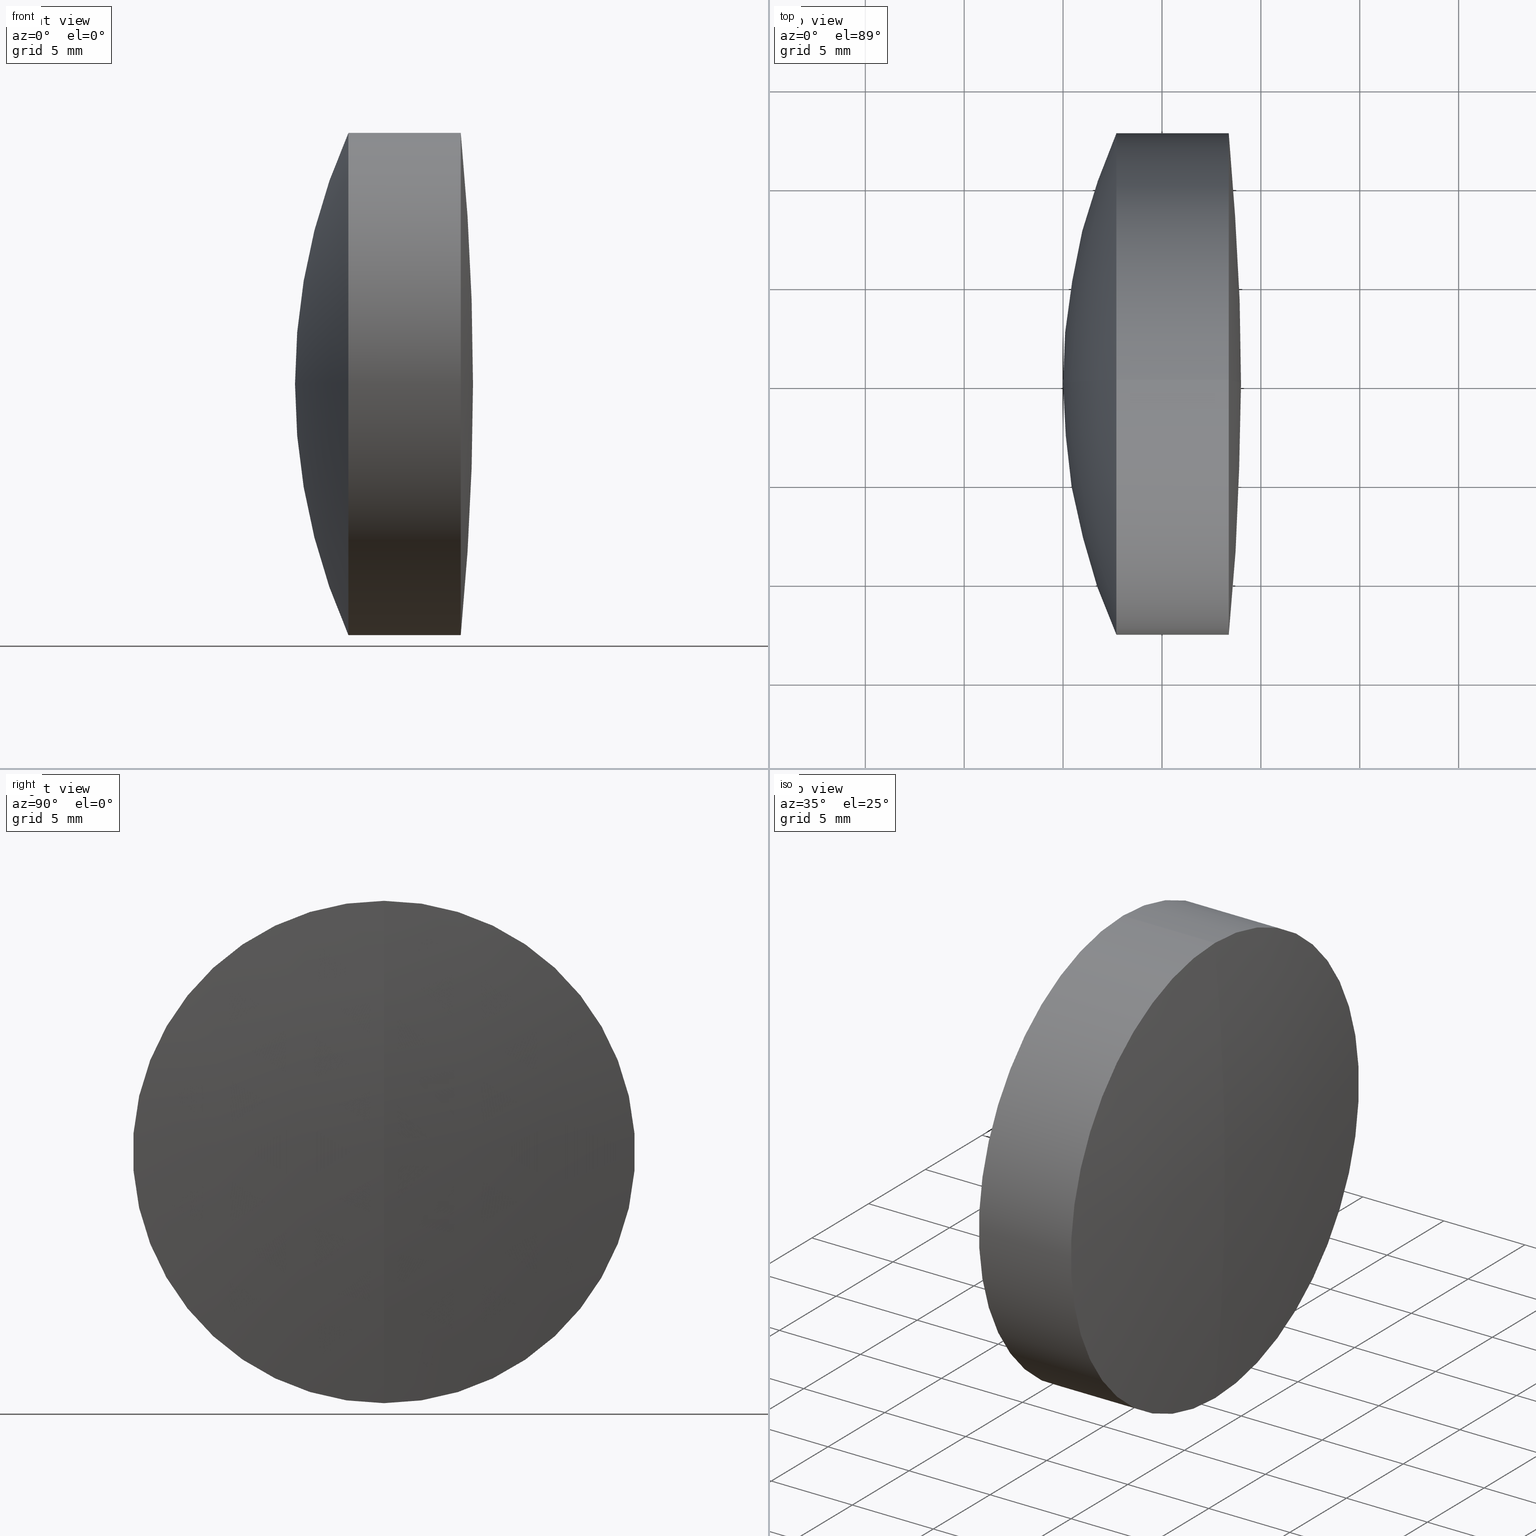
[diagram: canonical four-view strip — front | top / right | iso, engineering-drawing reading convention]
A machine part, canonical four-view strip (front | top / right | iso — engineering-drawing reading convention). The complete STEP part file that produces these views, byte-faithful:
ISO-10303-21;
HEADER;
FILE_DESCRIPTION (( 'STEP AP214' ),
    '1' );
FILE_NAME ('145053.STEP',
    '2019-05-13T07:10:48',
    ( 'user' ),
    ( '΢���й�' ),
    'SwSTEP 2.0',
    'SolidWorks 2016',
    '' );
FILE_SCHEMA (( 'AUTOMOTIVE_DESIGN' ));
ENDSEC;

DATA;
#1 = FILL_AREA_STYLE_COLOUR ( '', #212 ) ;
#2 = ORIENTED_EDGE ( 'NONE', *, *, #91, .T. ) ;
#3 = FACE_OUTER_BOUND ( 'NONE', #335, .T. ) ;
#4 =( NAMED_UNIT ( * ) PLANE_ANGLE_UNIT ( ) SI_UNIT ( $, .RADIAN. ) );
#5 = DIRECTION ( 'NONE',  ( -1.000000000000000000, -0.0000000000000000000, -0.0000000000000000000 ) ) ;
#6 = CARTESIAN_POINT ( 'NONE',  ( 233.6683955093282300, 0.0000000000000000000, 12.70000000000001700 ) ) ;
#7 = EDGE_CURVE ( 'NONE', #239, #32, #9, .T. ) ;
#8 = UNCERTAINTY_MEASURE_WITH_UNIT (LENGTH_MEASURE( 1.000000000000000100E-005 ), #234, 'distance_accuracy_value', 'NONE');
#9 = CIRCLE ( 'NONE', #97, 12.69999999999999200 ) ;
#10 = COLOUR_RGB ( '',1.000000000000000000, 1.000000000000000000, 1.000000000000000000 ) ;
#11 = ORIENTED_EDGE ( 'NONE', *, *, #227, .T. ) ;
#12 = CIRCLE ( 'NONE', #99, 12.70000000000001700 ) ;
#13 = EDGE_CURVE ( 'NONE', #32, #209, #19, .T. ) ;
#14 = MECHANICAL_DESIGN_GEOMETRIC_PRESENTATION_REPRESENTATION (  '', ( #338 ), #139 ) ;
#15 = CARTESIAN_POINT ( 'NONE',  ( 0.0000000000000000000, 0.0000000000000000000, 0.0000000000000000000 ) ) ;
#16 = ORIENTED_EDGE ( 'NONE', *, *, #7, .T. ) ;
#17 = CYLINDRICAL_SURFACE ( 'NONE', #44, 12.69999999999999200 ) ;
#18 = APPLICATION_CONTEXT ( 'automotive_design' ) ;
#19 = CIRCLE ( 'NONE', #43, 31.19999999999998500 ) ;
#20 = PRODUCT_RELATED_PRODUCT_CATEGORY ( 'part', '', ( #142 ) ) ;
#21 = DIRECTION ( 'NONE',  ( 0.0000000000000000000, -1.224646799147353000E-016, 1.000000000000000000 ) ) ;
#22 = ORIENTED_EDGE ( 'NONE', *, *, #264, .F. ) ;
#23 = ADVANCED_BREP_SHAPE_REPRESENTATION ( '145053', ( #294, #135, #250 ), #203 ) ;
#24 = DIRECTION ( 'NONE',  ( 0.0000000000000000000, 0.0000000000000000000, 1.000000000000000000 ) ) ;
#25 =( NAMED_UNIT ( * ) SI_UNIT ( $, .STERADIAN. ) SOLID_ANGLE_UNIT ( ) );
#26 = CIRCLE ( 'NONE', #162, 12.69999999999999200 ) ;
#27 = EDGE_CURVE ( 'NONE', #146, #310, #59, .T. ) ;
#28 = FILL_AREA_STYLE ('',( #1 ) ) ;
#29 = CARTESIAN_POINT ( 'NONE',  ( 238.3768828869102400, 0.0000000000000000000, 12.70000000000002100 ) ) ;
#30 =( NAMED_UNIT ( * ) SI_UNIT ( $, .STERADIAN. ) SOLID_ANGLE_UNIT ( ) );
#31 = AXIS2_PLACEMENT_3D ( 'NONE', #53, #106, #110 ) ;
#32 = VERTEX_POINT ( 'NONE', #253 ) ;
#33 = PRESENTATION_STYLE_ASSIGNMENT (( #231 ) ) ;
#34 = DIRECTION ( 'NONE',  ( 0.0000000000000000000, -1.224646799147353200E-016, 1.000000000000000000 ) ) ;
#35 = CARTESIAN_POINT ( 'NONE',  ( 261.1958458084194500, 0.0000000000000000000, -5.967343666751443000E-015 ) ) ;
#36 =( LENGTH_UNIT ( ) NAMED_UNIT ( * ) SI_UNIT ( .MILLI., .METRE. ) );
#37 = EDGE_LOOP ( 'NONE', ( #22, #220, #279 ) ) ;
#38 = ORIENTED_EDGE ( 'NONE', *, *, #27, .T. ) ;
#39 = LINE ( 'NONE', #191, #87 ) ;
#40 = PRODUCT_DEFINITION_FORMATION_WITH_SPECIFIED_SOURCE ( '�κ�', '', #142, .NOT_KNOWN. ) ;
#41 = SPHERICAL_SURFACE ( 'NONE', #127, 25.89999999999999100 ) ;
#42 = ADVANCED_FACE ( 'NONE', ( #3 ), #189, .T. ) ;
#43 = AXIS2_PLACEMENT_3D ( 'NONE', #35, #57, #155 ) ;
#44 = AXIS2_PLACEMENT_3D ( 'NONE', #45, #290, #79 ) ;
#45 = CARTESIAN_POINT ( 'NONE',  ( -9.702612178336682500, 0.0000000000000000000, 0.0000000000000000000 ) ) ;
#46 = SURFACE_SIDE_STYLE ('',( #252 ) ) ;
#47 = DIRECTION ( 'NONE',  ( -1.000000000000000000, -0.0000000000000000000, -0.0000000000000000000 ) ) ;
#48 = ADVANCED_FACE ( 'NONE', ( #265 ), #17, .T. ) ;
#49 = EDGE_CURVE ( 'NONE', #65, #310, #66, .T. ) ;
#50 = PRESENTATION_STYLE_ASSIGNMENT (( #130 ) ) ;
#51 = CIRCLE ( 'NONE', #217, 130.5999999999999900 ) ;
#52 = DIRECTION ( 'NONE',  ( 0.0000000000000000000, 0.0000000000000000000, 1.000000000000000000 ) ) ;
#53 = CARTESIAN_POINT ( 'NONE',  ( -0.5519199926577972300, 0.0000000000000000000, 0.0000000000000000000 ) ) ;
#54 = CLOSED_SHELL ( 'NONE', ( #150, #318, #207, #282, #48, #125 ) ) ;
#55 = EDGE_CURVE ( 'NONE', #159, #200, #179, .T. ) ;
#56 = DIRECTION ( 'NONE',  ( 1.000000000000000000, 0.0000000000000000000, 0.0000000000000000000 ) ) ;
#57 = DIRECTION ( 'NONE',  ( 0.0000000000000000000, -1.000000000000000000, 0.0000000000000000000 ) ) ;
#58 = STYLED_ITEM ( 'NONE', ( #197 ), #23 ) ;
#59 = CIRCLE ( 'NONE', #255, 12.70000000000002100 ) ;
#60 = DIRECTION ( 'NONE',  ( -1.000000000000000000, -0.0000000000000000000, -0.0000000000000000000 ) ) ;
#61 = EDGE_CURVE ( 'NONE', #121, #166, #128, .T. ) ;
#62 = EDGE_LOOP ( 'NONE', ( #242, #258, #224 ) ) ;
#63 =( NAMED_UNIT ( * ) SI_UNIT ( $, .STERADIAN. ) SOLID_ANGLE_UNIT ( ) );
#64 = AXIS2_PLACEMENT_3D ( 'NONE', #317, #249, #188 ) ;
#65 = VERTEX_POINT ( 'NONE', #283 ) ;
#66 = CIRCLE ( 'NONE', #201, 130.5999999999999900 ) ;
#67 = ADVANCED_FACE ( 'NONE', ( #263 ), #41, .F. ) ;
#68 = DIRECTION ( 'NONE',  ( -1.000000000000000000, -0.0000000000000000000, -0.0000000000000000000 ) ) ;
#69 = ORIENTED_EDGE ( 'NONE', *, *, #269, .T. ) ;
#70 = EDGE_LOOP ( 'NONE', ( #211, #11, #243, #260 ) ) ;
#71 = DIRECTION ( 'NONE',  ( 0.0000000000000000000, 1.000000000000000000, 0.0000000000000000000 ) ) ;
#72 = EDGE_LOOP ( 'NONE', ( #291, #305, #300 ) ) ;
#73 = VECTOR ( 'NONE', #167, 1000.000000000000000 ) ;
#74 = CARTESIAN_POINT ( 'NONE',  ( 108.3958458084194400, 0.0000000000000000000, 0.0000000000000000000 ) ) ;
#75 = ORIENTED_EDGE ( 'NONE', *, *, #55, .F. ) ;
#76 = AXIS2_PLACEMENT_3D ( 'NONE', #185, #124, #288 ) ;
#77 = DIRECTION ( 'NONE',  ( -0.0000000000000000000, 1.000000000000000000, 1.224646799147353200E-016 ) ) ;
#78 = CARTESIAN_POINT ( 'NONE',  ( 233.6683955093282300, 0.0000000000000000000, 0.0000000000000000000 ) ) ;
#79 = DIRECTION ( 'NONE',  ( 0.0000000000000000000, 0.0000000000000000000, 1.000000000000000000 ) ) ;
#80 = ORIENTED_EDGE ( 'NONE', *, *, #269, .F. ) ;
#81 = ORIENTED_EDGE ( 'NONE', *, *, #227, .F. ) ;
#82 = DIRECTION ( 'NONE',  ( 0.0000000000000000000, 0.0000000000000000000, 1.000000000000000000 ) ) ;
#83 = DIRECTION ( 'NONE',  ( 0.0000000000000000000, 1.000000000000000000, 0.0000000000000000000 ) ) ;
#84 = DIRECTION ( 'NONE',  ( 0.0000000000000000000, -1.000000000000000000, 0.0000000000000000000 ) ) ;
#85 = DIRECTION ( 'NONE',  ( 0.0000000000000000000, 0.0000000000000000000, 1.000000000000000000 ) ) ;
#86 = CARTESIAN_POINT ( 'NONE',  ( 108.3958458084194400, 0.0000000000000000000, 0.0000000000000000000 ) ) ;
#87 = VECTOR ( 'NONE', #228, 1000.000000000000000 ) ;
#88 = SURFACE_STYLE_FILL_AREA ( #118 ) ;
#89 = DIRECTION ( 'NONE',  ( 0.0000000000000000000, 0.0000000000000000000, 1.000000000000000000 ) ) ;
#90 = DIRECTION ( 'NONE',  ( -1.000000000000000000, -0.0000000000000000000, -0.0000000000000000000 ) ) ;
#91 = EDGE_CURVE ( 'NONE', #230, #166, #329, .T. ) ;
#92 = DIRECTION ( 'NONE',  ( 0.0000000000000000000, -1.224646799147353200E-016, 1.000000000000000000 ) ) ;
#93 = EDGE_LOOP ( 'NONE', ( #103, #284, #140 ) ) ;
#94 = CARTESIAN_POINT ( 'NONE',  ( 211.0958458084194300, 0.0000000000000000000, -3.185954776904472300E-015 ) ) ;
#95 = ORIENTED_EDGE ( 'NONE', *, *, #7, .F. ) ;
#96 = SURFACE_STYLE_FILL_AREA ( #28 ) ;
#97 = AXIS2_PLACEMENT_3D ( 'NONE', #347, #90, #52 ) ;
#98 = DIRECTION ( 'NONE',  ( 0.0000000000000000000, 0.0000000000000000000, 1.000000000000000000 ) ) ;
#99 = AXIS2_PLACEMENT_3D ( 'NONE', #261, #47, #102 ) ;
#100 = EDGE_LOOP ( 'NONE', ( #132, #2, #69 ) ) ;
#101 = COLOUR_RGB ( '',1.000000000000000000, 1.000000000000000000, 1.000000000000000000 ) ;
#102 = DIRECTION ( 'NONE',  ( 0.0000000000000000000, 0.0000000000000000000, 1.000000000000000000 ) ) ;
#103 = ORIENTED_EDGE ( 'NONE', *, *, #299, .F. ) ;
#104 = CYLINDRICAL_SURFACE ( 'NONE', #31, 12.70000000000001900 ) ;
#105 = AXIS2_PLACEMENT_3D ( 'NONE', #165, #164, #115 ) ;
#106 = DIRECTION ( 'NONE',  ( -1.000000000000000000, -0.0000000000000000000, -0.0000000000000000000 ) ) ;
#107 = EDGE_CURVE ( 'NONE', #146, #166, #39, .T. ) ;
#108 = CARTESIAN_POINT ( 'NONE',  ( 261.1958458084194500, 0.0000000000000000000, -5.967343666751443000E-015 ) ) ;
#109 = ORIENTED_EDGE ( 'NONE', *, *, #13, .T. ) ;
#110 = DIRECTION ( 'NONE',  ( 0.0000000000000000000, 0.0000000000000000000, 1.000000000000000000 ) ) ;
#111 = ADVANCED_FACE ( 'NONE', ( #119 ), #104, .T. ) ;
#112 = DIRECTION ( 'NONE',  ( 0.0000000000000000000, 0.0000000000000000000, 1.000000000000000000 ) ) ;
#113 = LINE ( 'NONE', #215, #73 ) ;
#114 = CARTESIAN_POINT ( 'NONE',  ( 108.3958458084194400, 0.0000000000000000000, 0.0000000000000000000 ) ) ;
#115 = DIRECTION ( 'NONE',  ( 0.0000000000000000000, 0.0000000000000000000, 1.000000000000000000 ) ) ;
#116 = DIRECTION ( 'NONE',  ( 0.0000000000000000000, 0.0000000000000000000, 1.000000000000000000 ) ) ;
#117 = SURFACE_SIDE_STYLE ('',( #96 ) ) ;
#118 = FILL_AREA_STYLE ('',( #208 ) ) ;
#119 = FACE_OUTER_BOUND ( 'NONE', #346, .T. ) ;
#120 = CARTESIAN_POINT ( 'NONE',  ( -9.702612178336682500, 0.0000000000000000000, 12.69999999999999200 ) ) ;
#121 = VERTEX_POINT ( 'NONE', #6 ) ;
#122 = CIRCLE ( 'NONE', #285, 25.89999999999999900 ) ;
#123 = AXIS2_PLACEMENT_3D ( 'NONE', #293, #84, #287 ) ;
#124 = DIRECTION ( 'NONE',  ( -1.000000000000000000, -0.0000000000000000000, -0.0000000000000000000 ) ) ;
#125 = ADVANCED_FACE ( 'NONE', ( #328 ), #303, .T. ) ;
#126 = UNCERTAINTY_MEASURE_WITH_UNIT (LENGTH_MEASURE( 1.000000000000000100E-005 ), #337, 'distance_accuracy_value', 'NONE');
#127 = AXIS2_PLACEMENT_3D ( 'NONE', #144, #143, #213 ) ;
#128 = CIRCLE ( 'NONE', #145, 12.70000000000001700 ) ;
#129 = CIRCLE ( 'NONE', #192, 12.69999999999999200 ) ;
#130 = SURFACE_STYLE_USAGE ( .BOTH. , #311 ) ;
#131 = EDGE_CURVE ( 'NONE', #310, #121, #113, .T. ) ;
#132 = ORIENTED_EDGE ( 'NONE', *, *, #152, .F. ) ;
#133 = AXIS2_PLACEMENT_3D ( 'NONE', #274, #256, #304 ) ;
#134 = SPHERICAL_SURFACE ( 'NONE', #105, 25.89999999999999900 ) ;
#135 = MANIFOLD_SOLID_BREP ( '��ת3', #325 ) ;
#136 = CARTESIAN_POINT ( 'NONE',  ( 211.0958458084194300, 0.0000000000000000000, -3.185954776904472300E-015 ) ) ;
#137 = FACE_OUTER_BOUND ( 'NONE', #62, .T. ) ;
#138 = DIRECTION ( 'NONE',  ( 0.0000000000000000000, 0.0000000000000000000, 1.000000000000000000 ) ) ;
#139 =( GEOMETRIC_REPRESENTATION_CONTEXT ( 3 ) GLOBAL_UNCERTAINTY_ASSIGNED_CONTEXT ( ( #8 ) ) GLOBAL_UNIT_ASSIGNED_CONTEXT ( ( #234, #320, #30 ) ) REPRESENTATION_CONTEXT ( 'NONE', 'WORKASPACE' ) );
#140 = ORIENTED_EDGE ( 'NONE', *, *, #27, .F. ) ;
#141 = ORIENTED_EDGE ( 'NONE', *, *, #107, .T. ) ;
#142 = PRODUCT ( '145053', '145053', '', ( #339 ) ) ;
#143 = DIRECTION ( 'NONE',  ( 0.0000000000000000000, 1.000000000000000000, 0.0000000000000000000 ) ) ;
#144 = CARTESIAN_POINT ( 'NONE',  ( 211.0958458084194300, 0.0000000000000000000, -3.185954776904472300E-015 ) ) ;
#145 = AXIS2_PLACEMENT_3D ( 'NONE', #78, #186, #170 ) ;
#146 = VERTEX_POINT ( 'NONE', #181 ) ;
#147 = SHAPE_DEFINITION_REPRESENTATION ( #330, #23 ) ;
#148 = AXIS2_PLACEMENT_3D ( 'NONE', #161, #251, #24 ) ;
#149 = APPLICATION_PROTOCOL_DEFINITION ( 'draft international standard', 'automotive_design', 1998, #151 ) ;
#150 = ADVANCED_FACE ( 'NONE', ( #225 ), #134, .T. ) ;
#151 = APPLICATION_CONTEXT ( 'automotive_design' ) ;
#152 = EDGE_CURVE ( 'NONE', #230, #121, #307, .T. ) ;
#153 = STYLED_ITEM ( 'NONE', ( #50 ), #294 ) ;
#154 = ORIENTED_EDGE ( 'NONE', *, *, #264, .T. ) ;
#155 = DIRECTION ( 'NONE',  ( 0.0000000000000000000, 0.0000000000000000000, -1.000000000000000000 ) ) ;
#156 = SPHERICAL_SURFACE ( 'NONE', #171, 130.5999999999999900 ) ;
#157 = DIRECTION ( 'NONE',  ( 0.0000000000000000000, -1.224646799147353200E-016, 1.000000000000000000 ) ) ;
#158 = DIRECTION ( 'NONE',  ( -0.0000000000000000000, 1.000000000000000000, 1.224646799147353200E-016 ) ) ;
#159 = VERTEX_POINT ( 'NONE', #341 ) ;
#160 = ORIENTED_EDGE ( 'NONE', *, *, #131, .T. ) ;
#161 = CARTESIAN_POINT ( 'NONE',  ( 108.3958458084194400, 0.0000000000000000000, 0.0000000000000000000 ) ) ;
#162 = AXIS2_PLACEMENT_3D ( 'NONE', #173, #68, #138 ) ;
#163 =( LENGTH_UNIT ( ) NAMED_UNIT ( * ) SI_UNIT ( .MILLI., .METRE. ) );
#164 = DIRECTION ( 'NONE',  ( 0.0000000000000000000, 1.000000000000000000, 0.0000000000000000000 ) ) ;
#165 = CARTESIAN_POINT ( 'NONE',  ( 211.0958458084194300, 0.0000000000000000000, -3.185954776904472300E-015 ) ) ;
#166 = VERTEX_POINT ( 'NONE', #278 ) ;
#167 = DIRECTION ( 'NONE',  ( -1.000000000000000000, -0.0000000000000000000, -0.0000000000000000000 ) ) ;
#168 = DIRECTION ( 'NONE',  ( -1.000000000000000000, -0.0000000000000000000, -0.0000000000000000000 ) ) ;
#169 = CARTESIAN_POINT ( 'NONE',  ( 238.3768828869102400, 0.0000000000000000000, 0.0000000000000000000 ) ) ;
#170 = DIRECTION ( 'NONE',  ( 0.0000000000000000000, 0.0000000000000000000, 1.000000000000000000 ) ) ;
#171 = AXIS2_PLACEMENT_3D ( 'NONE', #86, #277, #116 ) ;
#172 = EDGE_CURVE ( 'NONE', #319, #200, #177, .T. ) ;
#173 = CARTESIAN_POINT ( 'NONE',  ( 233.6683955093282300, 0.0000000000000000000, 0.0000000000000000000 ) ) ;
#174 = EDGE_LOOP ( 'NONE', ( #81, #280, #268, #95 ) ) ;
#175 = ADVANCED_FACE ( 'NONE', ( #254 ), #323, .T. ) ;
#176 = EDGE_LOOP ( 'NONE', ( #333, #272, #273 ) ) ;
#177 = CIRCLE ( 'NONE', #187, 12.69999999999999200 ) ;
#178 = AXIS2_PLACEMENT_3D ( 'NONE', #312, #281, #34 ) ;
#179 = CIRCLE ( 'NONE', #182, 25.89999999999999900 ) ;
#180 = EDGE_LOOP ( 'NONE', ( #75, #154, #276 ) ) ;
#181 = CARTESIAN_POINT ( 'NONE',  ( 238.3768828869102400, 1.555301434917141200E-015, -12.70000000000002200 ) ) ;
#182 = AXIS2_PLACEMENT_3D ( 'NONE', #94, #77, #92 ) ;
#183 = CARTESIAN_POINT ( 'NONE',  ( 229.9958458084194600, 0.0000000000000000000, -4.056894660081572400E-015 ) ) ;
#184 = AXIS2_PLACEMENT_3D ( 'NONE', #108, #257, #82 ) ;
#185 = CARTESIAN_POINT ( 'NONE',  ( -9.702612178336682500, 0.0000000000000000000, 0.0000000000000000000 ) ) ;
#186 = DIRECTION ( 'NONE',  ( -1.000000000000000000, -0.0000000000000000000, -0.0000000000000000000 ) ) ;
#187 = AXIS2_PLACEMENT_3D ( 'NONE', #314, #5, #344 ) ;
#188 = DIRECTION ( 'NONE',  ( 0.0000000000000000000, 0.0000000000000000000, 1.000000000000000000 ) ) ;
#189 = CYLINDRICAL_SURFACE ( 'NONE', #64, 12.70000000000001900 ) ;
#190 = CIRCLE ( 'NONE', #133, 12.70000000000002100 ) ;
#191 = CARTESIAN_POINT ( 'NONE',  ( -0.5519199926577972300, 1.555301434917140800E-015, -12.70000000000001900 ) ) ;
#192 = AXIS2_PLACEMENT_3D ( 'NONE', #324, #297, #112 ) ;
#193 = DIRECTION ( 'NONE',  ( 0.0000000000000000000, 1.000000000000000000, 0.0000000000000000000 ) ) ;
#194 = ORIENTED_EDGE ( 'NONE', *, *, #107, .F. ) ;
#195 = SPHERICAL_SURFACE ( 'NONE', #270, 31.19999999999998500 ) ;
#196 = EDGE_CURVE ( 'NONE', #239, #209, #205, .T. ) ;
#197 = PRESENTATION_STYLE_ASSIGNMENT (( #245 ) ) ;
#198 = AXIS2_PLACEMENT_3D ( 'NONE', #136, #193, #85 ) ;
#199 =( GEOMETRIC_REPRESENTATION_CONTEXT ( 3 ) GLOBAL_UNCERTAINTY_ASSIGNED_CONTEXT ( ( #126 ) ) GLOBAL_UNIT_ASSIGNED_CONTEXT ( ( #337, #229, #246 ) ) REPRESENTATION_CONTEXT ( 'NONE', 'WORKASPACE' ) );
#200 = VERTEX_POINT ( 'NONE', #237 ) ;
#201 = AXIS2_PLACEMENT_3D ( 'NONE', #74, #202, #266 ) ;
#202 = DIRECTION ( 'NONE',  ( 0.0000000000000000000, -1.000000000000000000, 0.0000000000000000000 ) ) ;
#203 =( GEOMETRIC_REPRESENTATION_CONTEXT ( 3 ) GLOBAL_UNCERTAINTY_ASSIGNED_CONTEXT ( ( #340 ) ) GLOBAL_UNIT_ASSIGNED_CONTEXT ( ( #163, #309, #25 ) ) REPRESENTATION_CONTEXT ( 'NONE', 'WORKASPACE' ) );
#204 = ORIENTED_EDGE ( 'NONE', *, *, #131, .F. ) ;
#205 = CIRCLE ( 'NONE', #178, 31.19999999999998500 ) ;
#206 = DIRECTION ( 'NONE',  ( 0.0000000000000000000, 0.0000000000000000000, 1.000000000000000000 ) ) ;
#207 = ADVANCED_FACE ( 'NONE', ( #137 ), #195, .T. ) ;
#208 = FILL_AREA_STYLE_COLOUR ( '', #101 ) ;
#209 = VERTEX_POINT ( 'NONE', #183 ) ;
#210 = CARTESIAN_POINT ( 'NONE',  ( 211.0958458084194300, 0.0000000000000000000, -3.185954776904472300E-015 ) ) ;
#211 = ORIENTED_EDGE ( 'NONE', *, *, #172, .T. ) ;
#212 = COLOUR_RGB ( '',1.000000000000000000, 1.000000000000000000, 1.000000000000000000 ) ;
#213 = DIRECTION ( 'NONE',  ( 0.0000000000000000000, 0.0000000000000000000, 1.000000000000000000 ) ) ;
#214 =( GEOMETRIC_REPRESENTATION_CONTEXT ( 3 ) GLOBAL_UNCERTAINTY_ASSIGNED_CONTEXT ( ( #238 ) ) GLOBAL_UNIT_ASSIGNED_CONTEXT ( ( #36, #4, #63 ) ) REPRESENTATION_CONTEXT ( 'NONE', 'WORKASPACE' ) );
#215 = CARTESIAN_POINT ( 'NONE',  ( -0.5519199926577972300, 0.0000000000000000000, 12.70000000000001900 ) ) ;
#216 = CARTESIAN_POINT ( 'NONE',  ( 261.1958458084194500, 0.0000000000000000000, -5.967343666751443000E-015 ) ) ;
#217 = AXIS2_PLACEMENT_3D ( 'NONE', #114, #271, #21 ) ;
#218 = ORIENTED_EDGE ( 'NONE', *, *, #196, .F. ) ;
#219 = SPHERICAL_SURFACE ( 'NONE', #184, 31.19999999999998500 ) ;
#220 = ORIENTED_EDGE ( 'NONE', *, *, #55, .T. ) ;
#221 = EDGE_CURVE ( 'NONE', #32, #239, #129, .T. ) ;
#222 = EDGE_LOOP ( 'NONE', ( #218, #16, #109 ) ) ;
#223 = LINE ( 'NONE', #120, #259 ) ;
#224 = ORIENTED_EDGE ( 'NONE', *, *, #13, .F. ) ;
#225 = FACE_OUTER_BOUND ( 'NONE', #37, .T. ) ;
#226 = SPHERICAL_SURFACE ( 'NONE', #267, 25.89999999999999100 ) ;
#227 = EDGE_CURVE ( 'NONE', #200, #239, #326, .T. ) ;
#228 = DIRECTION ( 'NONE',  ( -1.000000000000000000, -0.0000000000000000000, -0.0000000000000000000 ) ) ;
#229 =( NAMED_UNIT ( * ) PLANE_ANGLE_UNIT ( ) SI_UNIT ( $, .RADIAN. ) );
#230 = VERTEX_POINT ( 'NONE', #248 ) ;
#231 = SURFACE_STYLE_USAGE ( .BOTH. , #117 ) ;
#232 = MECHANICAL_DESIGN_GEOMETRIC_PRESENTATION_REPRESENTATION (  '', ( #153 ), #214 ) ;
#233 = DIRECTION ( 'NONE',  ( 0.0000000000000000000, 0.0000000000000000000, -1.000000000000000000 ) ) ;
#234 =( LENGTH_UNIT ( ) NAMED_UNIT ( * ) SI_UNIT ( .MILLI., .METRE. ) );
#235 = ORIENTED_EDGE ( 'NONE', *, *, #61, .F. ) ;
#236 = FACE_OUTER_BOUND ( 'NONE', #93, .T. ) ;
#237 = CARTESIAN_POINT ( 'NONE',  ( 233.6683955093282300, 1.555301434917137800E-015, -12.69999999999999200 ) ) ;
#238 = UNCERTAINTY_MEASURE_WITH_UNIT (LENGTH_MEASURE( 1.000000000000000100E-005 ), #36, 'distance_accuracy_value', 'NONE');
#239 = VERTEX_POINT ( 'NONE', #322 ) ;
#240 = FILL_AREA_STYLE_COLOUR ( '', #10 ) ;
#241 = DIRECTION ( 'NONE',  ( 0.0000000000000000000, 0.0000000000000000000, 1.000000000000000000 ) ) ;
#242 = ORIENTED_EDGE ( 'NONE', *, *, #221, .T. ) ;
#243 = ORIENTED_EDGE ( 'NONE', *, *, #221, .F. ) ;
#244 = VECTOR ( 'NONE', #60, 1000.000000000000000 ) ;
#245 = SURFACE_STYLE_USAGE ( .BOTH. , #46 ) ;
#246 =( NAMED_UNIT ( * ) SI_UNIT ( $, .STERADIAN. ) SOLID_ANGLE_UNIT ( ) );
#247 = CARTESIAN_POINT ( 'NONE',  ( 211.0958458084194300, 0.0000000000000000000, -3.185954776904472300E-015 ) ) ;
#248 = CARTESIAN_POINT ( 'NONE',  ( 236.9958458084194300, 0.0000000000000000000, -1.600037172008650700E-015 ) ) ;
#249 = DIRECTION ( 'NONE',  ( -1.000000000000000000, -0.0000000000000000000, -0.0000000000000000000 ) ) ;
#250 = AXIS2_PLACEMENT_3D ( 'NONE', #15, #98, #56 ) ;
#251 = DIRECTION ( 'NONE',  ( 0.0000000000000000000, 1.000000000000000000, 0.0000000000000000000 ) ) ;
#252 = SURFACE_STYLE_FILL_AREA ( #313 ) ;
#253 = CARTESIAN_POINT ( 'NONE',  ( 232.6976002483854100, 0.0000000000000000000, 12.69999999999999600 ) ) ;
#254 = FACE_OUTER_BOUND ( 'NONE', #176, .T. ) ;
#255 = AXIS2_PLACEMENT_3D ( 'NONE', #169, #343, #206 ) ;
#256 = DIRECTION ( 'NONE',  ( -1.000000000000000000, -0.0000000000000000000, -0.0000000000000000000 ) ) ;
#257 = DIRECTION ( 'NONE',  ( 0.0000000000000000000, 1.000000000000000000, 0.0000000000000000000 ) ) ;
#258 = ORIENTED_EDGE ( 'NONE', *, *, #196, .T. ) ;
#259 = VECTOR ( 'NONE', #168, 1000.000000000000000 ) ;
#260 = ORIENTED_EDGE ( 'NONE', *, *, #334, .F. ) ;
#261 = CARTESIAN_POINT ( 'NONE',  ( 233.6683955093282300, 0.0000000000000000000, 0.0000000000000000000 ) ) ;
#262 = AXIS2_PLACEMENT_3D ( 'NONE', #289, #158, #157 ) ;
#263 = FACE_OUTER_BOUND ( 'NONE', #72, .T. ) ;
#264 = EDGE_CURVE ( 'NONE', #159, #319, #122, .T. ) ;
#265 = FACE_OUTER_BOUND ( 'NONE', #174, .T. ) ;
#266 = DIRECTION ( 'NONE',  ( 0.0000000000000000000, 0.0000000000000000000, -1.000000000000000000 ) ) ;
#267 = AXIS2_PLACEMENT_3D ( 'NONE', #247, #83, #241 ) ;
#268 = ORIENTED_EDGE ( 'NONE', *, *, #334, .T. ) ;
#269 = EDGE_CURVE ( 'NONE', #166, #121, #12, .T. ) ;
#270 = AXIS2_PLACEMENT_3D ( 'NONE', #216, #71, #89 ) ;
#271 = DIRECTION ( 'NONE',  ( -0.0000000000000000000, 1.000000000000000000, 1.224646799147353200E-016 ) ) ;
#272 = ORIENTED_EDGE ( 'NONE', *, *, #299, .T. ) ;
#273 = ORIENTED_EDGE ( 'NONE', *, *, #332, .F. ) ;
#274 = CARTESIAN_POINT ( 'NONE',  ( 238.3768828869102400, 0.0000000000000000000, 0.0000000000000000000 ) ) ;
#275 = FACE_OUTER_BOUND ( 'NONE', #100, .T. ) ;
#276 = ORIENTED_EDGE ( 'NONE', *, *, #316, .F. ) ;
#277 = DIRECTION ( 'NONE',  ( 0.0000000000000000000, 1.000000000000000000, 0.0000000000000000000 ) ) ;
#278 = CARTESIAN_POINT ( 'NONE',  ( 233.6683955093282300, 1.555301434917140400E-015, -12.70000000000002100 ) ) ;
#279 = ORIENTED_EDGE ( 'NONE', *, *, #172, .F. ) ;
#280 = ORIENTED_EDGE ( 'NONE', *, *, #316, .T. ) ;
#281 = DIRECTION ( 'NONE',  ( -0.0000000000000000000, 1.000000000000000000, 1.224646799147353200E-016 ) ) ;
#282 = ADVANCED_FACE ( 'NONE', ( #336 ), #219, .T. ) ;
#283 = CARTESIAN_POINT ( 'NONE',  ( 238.9958458084194300, 0.0000000000000000000, 7.996943598432215000E-015 ) ) ;
#284 = ORIENTED_EDGE ( 'NONE', *, *, #49, .T. ) ;
#285 = AXIS2_PLACEMENT_3D ( 'NONE', #210, #298, #233 ) ;
#286 = CARTESIAN_POINT ( 'NONE',  ( 233.6683955093282300, 0.0000000000000000000, 12.69999999999999200 ) ) ;
#287 = DIRECTION ( 'NONE',  ( 0.0000000000000000000, 0.0000000000000000000, -1.000000000000000000 ) ) ;
#288 = DIRECTION ( 'NONE',  ( 0.0000000000000000000, 0.0000000000000000000, 1.000000000000000000 ) ) ;
#289 = CARTESIAN_POINT ( 'NONE',  ( 211.0958458084194300, 0.0000000000000000000, -3.185954776904472300E-015 ) ) ;
#290 = DIRECTION ( 'NONE',  ( -1.000000000000000000, -0.0000000000000000000, -0.0000000000000000000 ) ) ;
#291 = ORIENTED_EDGE ( 'NONE', *, *, #91, .F. ) ;
#292 = FACE_OUTER_BOUND ( 'NONE', #70, .T. ) ;
#293 = CARTESIAN_POINT ( 'NONE',  ( 211.0958458084194300, 0.0000000000000000000, -3.185954776904472300E-015 ) ) ;
#294 = MANIFOLD_SOLID_BREP ( '��ת1', #54 ) ;
#295 = PRESENTATION_LAYER_ASSIGNMENT (  '', '', ( #338 ) ) ;
#296 = APPLICATION_PROTOCOL_DEFINITION ( 'draft international standard', 'automotive_design', 1998, #18 ) ;
#297 = DIRECTION ( 'NONE',  ( -1.000000000000000000, -0.0000000000000000000, -0.0000000000000000000 ) ) ;
#298 = DIRECTION ( 'NONE',  ( 0.0000000000000000000, -1.000000000000000000, 0.0000000000000000000 ) ) ;
#299 = EDGE_CURVE ( 'NONE', #65, #146, #51, .T. ) ;
#300 = ORIENTED_EDGE ( 'NONE', *, *, #61, .T. ) ;
#301 = PRESENTATION_LAYER_ASSIGNMENT (  '', '', ( #58 ) ) ;
#302 = ORIENTED_EDGE ( 'NONE', *, *, #332, .T. ) ;
#303 = SPHERICAL_SURFACE ( 'NONE', #198, 25.89999999999999900 ) ;
#304 = DIRECTION ( 'NONE',  ( 0.0000000000000000000, 0.0000000000000000000, 1.000000000000000000 ) ) ;
#305 = ORIENTED_EDGE ( 'NONE', *, *, #152, .T. ) ;
#306 = ADVANCED_FACE ( 'NONE', ( #236 ), #156, .T. ) ;
#307 = CIRCLE ( 'NONE', #123, 25.89999999999999100 ) ;
#308 = PRODUCT_DEFINITION ( 'δ֪', '', #40, #331 ) ;
#309 =( NAMED_UNIT ( * ) PLANE_ANGLE_UNIT ( ) SI_UNIT ( $, .RADIAN. ) );
#310 = VERTEX_POINT ( 'NONE', #29 ) ;
#311 = SURFACE_SIDE_STYLE ('',( #88 ) ) ;
#312 = CARTESIAN_POINT ( 'NONE',  ( 261.1958458084194500, 0.0000000000000000000, -5.967343666751443000E-015 ) ) ;
#313 = FILL_AREA_STYLE ('',( #240 ) ) ;
#314 = CARTESIAN_POINT ( 'NONE',  ( 233.6683955093282300, 0.0000000000000000000, 0.0000000000000000000 ) ) ;
#315 = ADVANCED_FACE ( 'NONE', ( #275 ), #226, .F. ) ;
#316 = EDGE_CURVE ( 'NONE', #200, #319, #26, .T. ) ;
#317 = CARTESIAN_POINT ( 'NONE',  ( -0.5519199926577972300, 0.0000000000000000000, 0.0000000000000000000 ) ) ;
#318 = ADVANCED_FACE ( 'NONE', ( #292 ), #342, .T. ) ;
#319 = VERTEX_POINT ( 'NONE', #286 ) ;
#320 =( NAMED_UNIT ( * ) PLANE_ANGLE_UNIT ( ) SI_UNIT ( $, .RADIAN. ) );
#321 = CARTESIAN_POINT ( 'NONE',  ( -9.702612178336682500, 1.555301434917137800E-015, -12.69999999999999200 ) ) ;
#322 = CARTESIAN_POINT ( 'NONE',  ( 232.6976002483854100, 1.555301434917138000E-015, -12.69999999999999900 ) ) ;
#323 = SPHERICAL_SURFACE ( 'NONE', #148, 130.5999999999999900 ) ;
#324 = CARTESIAN_POINT ( 'NONE',  ( 232.6976002483854100, 0.0000000000000000000, 0.0000000000000000000 ) ) ;
#325 = CLOSED_SHELL ( 'NONE', ( #175, #111, #315, #67, #42, #306 ) ) ;
#326 = LINE ( 'NONE', #321, #244 ) ;
#327 = PRESENTATION_LAYER_ASSIGNMENT (  '', '', ( #153 ) ) ;
#328 = FACE_OUTER_BOUND ( 'NONE', #180, .T. ) ;
#329 = CIRCLE ( 'NONE', #262, 25.89999999999999100 ) ;
#330 = PRODUCT_DEFINITION_SHAPE ( 'NONE', 'NONE',  #308 ) ;
#331 = PRODUCT_DEFINITION_CONTEXT ( 'detailed design', #151, 'design' ) ;
#332 = EDGE_CURVE ( 'NONE', #310, #146, #190, .T. ) ;
#333 = ORIENTED_EDGE ( 'NONE', *, *, #49, .F. ) ;
#334 = EDGE_CURVE ( 'NONE', #319, #32, #223, .T. ) ;
#335 = EDGE_LOOP ( 'NONE', ( #194, #38, #160, #80 ) ) ;
#336 = FACE_OUTER_BOUND ( 'NONE', #222, .T. ) ;
#337 =( LENGTH_UNIT ( ) NAMED_UNIT ( * ) SI_UNIT ( .MILLI., .METRE. ) );
#338 = STYLED_ITEM ( 'NONE', ( #33 ), #135 ) ;
#339 = PRODUCT_CONTEXT ( 'NONE', #18, 'mechanical' ) ;
#340 = UNCERTAINTY_MEASURE_WITH_UNIT (LENGTH_MEASURE( 1.000000000000000100E-005 ), #163, 'distance_accuracy_value', 'NONE');
#341 = CARTESIAN_POINT ( 'NONE',  ( 236.9958458084194300, 0.0000000000000000000, -1.600037172008650300E-015 ) ) ;
#342 = CYLINDRICAL_SURFACE ( 'NONE', #76, 12.69999999999999200 ) ;
#343 = DIRECTION ( 'NONE',  ( -1.000000000000000000, -0.0000000000000000000, -0.0000000000000000000 ) ) ;
#344 = DIRECTION ( 'NONE',  ( 0.0000000000000000000, 0.0000000000000000000, 1.000000000000000000 ) ) ;
#345 = MECHANICAL_DESIGN_GEOMETRIC_PRESENTATION_REPRESENTATION (  '', ( #58 ), #199 ) ;
#346 = EDGE_LOOP ( 'NONE', ( #302, #141, #235, #204 ) ) ;
#347 = CARTESIAN_POINT ( 'NONE',  ( 232.6976002483854100, 0.0000000000000000000, 0.0000000000000000000 ) ) ;
ENDSEC;
END-ISO-10303-21;
